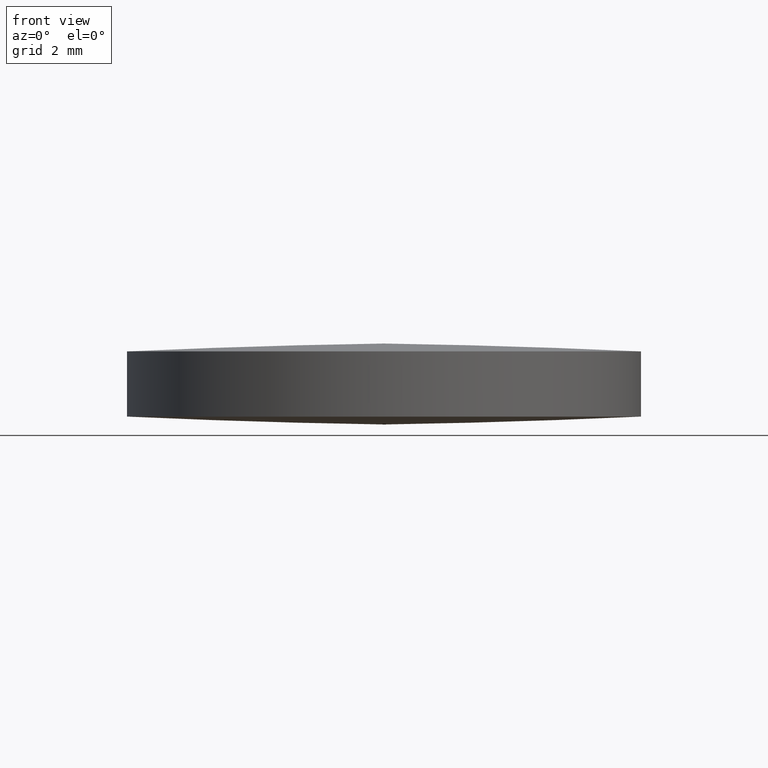
[diagram: clean part render]
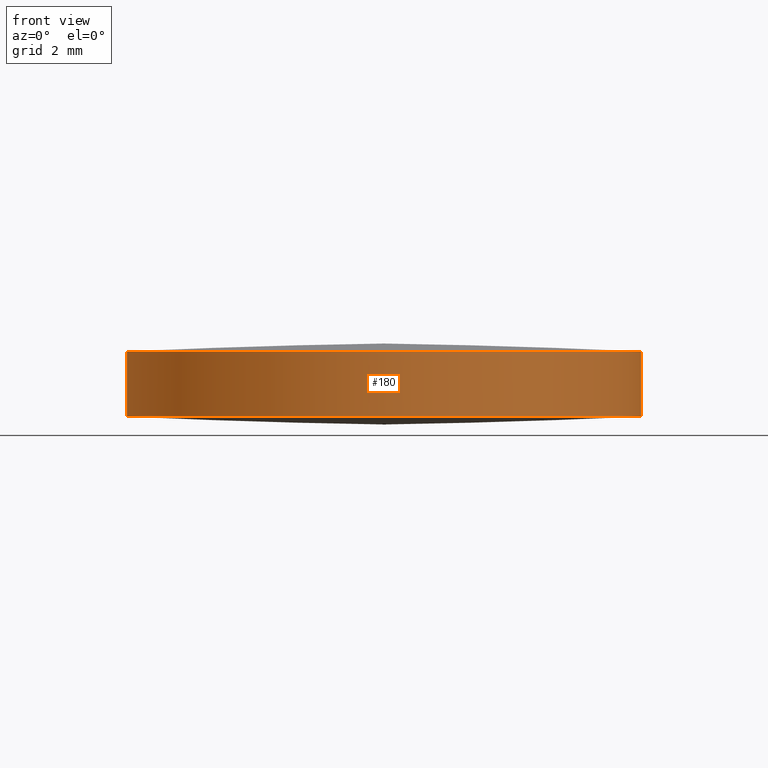
[diagram: same view with one face highlighted and labeled with its STEP entity id]
A machine part, front view. The second image highlights one B-rep face of the part: STEP entity #180.
In plain terms, the highlighted cylindrical surface (partial cylindrical patch) has radius 6.35 mm, axis along (0, 0, 1).
Its self-contained STEP definition (entity closure, byte-faithful):
#5 = DIRECTION ( 'NONE',  ( 1.000000000000000000, 0.0000000000000000000, 0.0000000000000000000 ) ) ;
#7 = AXIS2_PLACEMENT_3D ( 'NONE', #273, #230, #5 ) ;
#15 = DIRECTION ( 'NONE',  ( 1.000000000000000000, 8.881784197001252300E-016, 0.0000000000000000000 ) ) ;
#18 = DIRECTION ( 'NONE',  ( -0.0000000000000000000, -0.0000000000000000000, -1.000000000000000000 ) ) ;
#27 = CARTESIAN_POINT ( 'NONE',  ( -6.349999999999999600, 1.998896044546239400E-015, 0.1951672643184800000 ) ) ;
#35 = CIRCLE ( 'NONE', #198, 6.349999999999999600 ) ;
#41 = CARTESIAN_POINT ( 'NONE',  ( 2.498001805406600200E-016, 1.221245327087670000E-015, 1.804832735681519900 ) ) ;
#44 = DIRECTION ( 'NONE',  ( -0.0000000000000000000, -0.0000000000000000000, -1.000000000000000000 ) ) ;
#45 = EDGE_CURVE ( 'NONE', #133, #152, #98, .T. ) ;
#50 = AXIS2_PLACEMENT_3D ( 'NONE', #92, #116, #15 ) ;
#56 = CARTESIAN_POINT ( 'NONE',  ( 2.220774660677933400E-014, -6.350000000000010300, 1.804832735681521000 ) ) ;
#61 = CARTESIAN_POINT ( 'NONE',  ( 2.498001805406600200E-016, 1.221245327087670000E-015, 0.1951672643184800000 ) ) ;
#63 = AXIS2_PLACEMENT_3D ( 'NONE', #156, #18, #158 ) ;
#66 = VERTEX_POINT ( 'NONE', #96 ) ;
#69 = EDGE_CURVE ( 'NONE', #208, #161, #236, .T. ) ;
#78 = CARTESIAN_POINT ( 'NONE',  ( 6.349999999999999600, 1.221245327087670000E-015, 1.804832735681519900 ) ) ;
#79 = CIRCLE ( 'NONE', #184, 6.349999999999999600 ) ;
#80 = DIRECTION ( 'NONE',  ( 1.000000000000000000, 0.0000000000000000000, 0.0000000000000000000 ) ) ;
#81 = VERTEX_POINT ( 'NONE', #267 ) ;
#92 = CARTESIAN_POINT ( 'NONE',  ( 2.498001805406600200E-016, 1.221245327087670000E-015, 0.1951672643184800000 ) ) ;
#94 = EDGE_CURVE ( 'NONE', #81, #208, #206, .T. ) ;
#96 = CARTESIAN_POINT ( 'NONE',  ( -6.349999999999999600, 1.998896044546239400E-015, 1.804832735681519900 ) ) ;
#98 = CIRCLE ( 'NONE', #50, 6.349999999999999600 ) ;
#103 = LINE ( 'NONE', #226, #147 ) ;
#106 = ORIENTED_EDGE ( 'NONE', *, *, #69, .T. ) ;
#110 = ORIENTED_EDGE ( 'NONE', *, *, #94, .T. ) ;
#116 = DIRECTION ( 'NONE',  ( -0.0000000000000000000, -0.0000000000000000000, -1.000000000000000000 ) ) ;
#125 = DIRECTION ( 'NONE',  ( -0.0000000000000000000, -0.0000000000000000000, -1.000000000000000000 ) ) ;
#126 = VECTOR ( 'NONE', #188, 1000.000000000000000 ) ;
#133 = VERTEX_POINT ( 'NONE', #163 ) ;
#136 = CARTESIAN_POINT ( 'NONE',  ( 6.349999999999999600, 1.221245327087670000E-015, 0.1951672643184800000 ) ) ;
#147 = VECTOR ( 'NONE', #224, 1000.000000000000000 ) ;
#149 = ORIENTED_EDGE ( 'NONE', *, *, #45, .F. ) ;
#152 = VERTEX_POINT ( 'NONE', #27 ) ;
#156 = CARTESIAN_POINT ( 'NONE',  ( 2.498001805406600200E-016, 1.221245327087670000E-015, 1.804832735681519900 ) ) ;
#158 = DIRECTION ( 'NONE',  ( 1.000000000000000000, 0.0000000000000000000, 0.0000000000000000000 ) ) ;
#161 = VERTEX_POINT ( 'NONE', #56 ) ;
#163 = CARTESIAN_POINT ( 'NONE',  ( -2.220774660677933400E-014, -6.350000000000010300, 0.1951672643184799200 ) ) ;
#180 = ADVANCED_FACE ( 'NONE', ( #232 ), #233, .T. ) ;
#183 = ORIENTED_EDGE ( 'NONE', *, *, #228, .F. ) ;
#184 = AXIS2_PLACEMENT_3D ( 'NONE', #61, #125, #270 ) ;
#188 = DIRECTION ( 'NONE',  ( 0.0000000000000000000, 0.0000000000000000000, 1.000000000000000000 ) ) ;
#198 = AXIS2_PLACEMENT_3D ( 'NONE', #41, #44, #80 ) ;
#206 = LINE ( 'NONE', #136, #126 ) ;
#208 = VERTEX_POINT ( 'NONE', #78 ) ;
#224 = DIRECTION ( 'NONE',  ( 0.0000000000000000000, 0.0000000000000000000, 1.000000000000000000 ) ) ;
#226 = CARTESIAN_POINT ( 'NONE',  ( -6.349999999999999600, 1.998896044546239400E-015, 0.1951672643184800000 ) ) ;
#228 = EDGE_CURVE ( 'NONE', #81, #133, #79, .T. ) ;
#230 = DIRECTION ( 'NONE',  ( 0.0000000000000000000, 0.0000000000000000000, 1.000000000000000000 ) ) ;
#232 = FACE_OUTER_BOUND ( 'NONE', #272, .T. ) ;
#233 = CYLINDRICAL_SURFACE ( 'NONE', #7, 6.349999999999999600 ) ;
#236 = CIRCLE ( 'NONE', #63, 6.349999999999999600 ) ;
#239 = EDGE_CURVE ( 'NONE', #161, #66, #35, .T. ) ;
#265 = EDGE_CURVE ( 'NONE', #152, #66, #103, .T. ) ;
#267 = CARTESIAN_POINT ( 'NONE',  ( 6.349999999999999600, 1.221245327087670000E-015, 0.1951672643184800000 ) ) ;
#270 = DIRECTION ( 'NONE',  ( 1.000000000000000000, 0.0000000000000000000, 0.0000000000000000000 ) ) ;
#272 = EDGE_LOOP ( 'NONE', ( #278, #149, #183, #110, #106, #287 ) ) ;
#273 = CARTESIAN_POINT ( 'NONE',  ( 2.498001805406600200E-016, 1.221245327087670000E-015, 0.1951672643184800000 ) ) ;
#278 = ORIENTED_EDGE ( 'NONE', *, *, #265, .F. ) ;
#287 = ORIENTED_EDGE ( 'NONE', *, *, #239, .T. ) ;